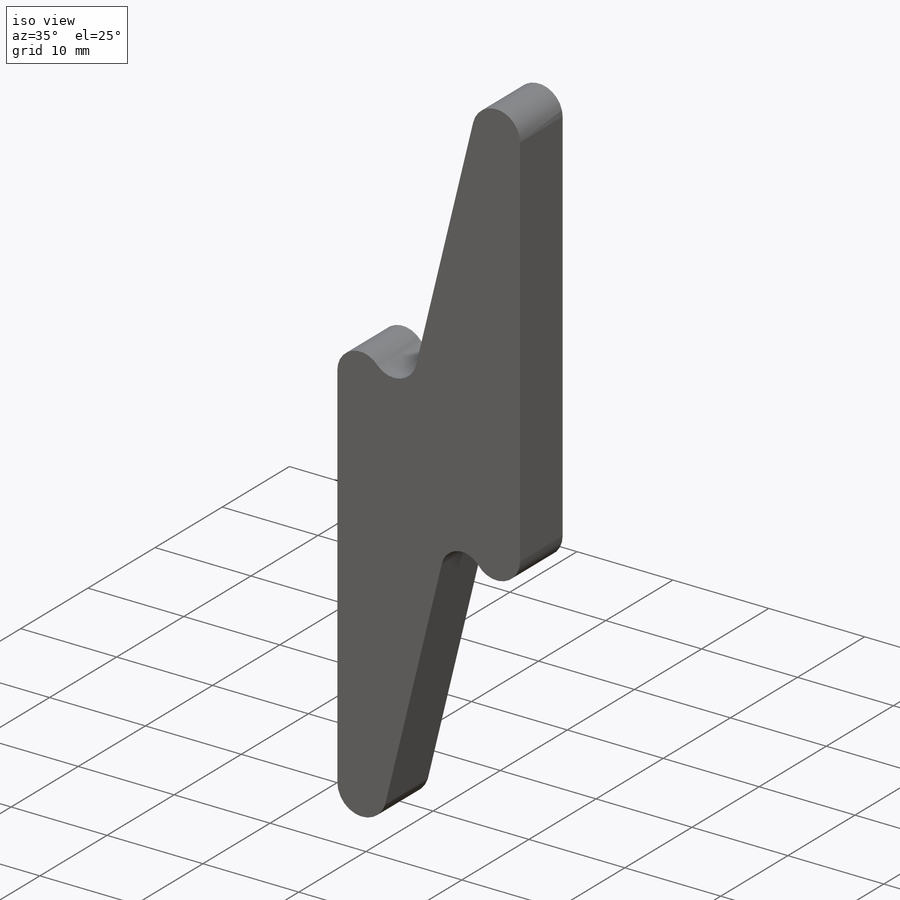
[diagram: iso view]
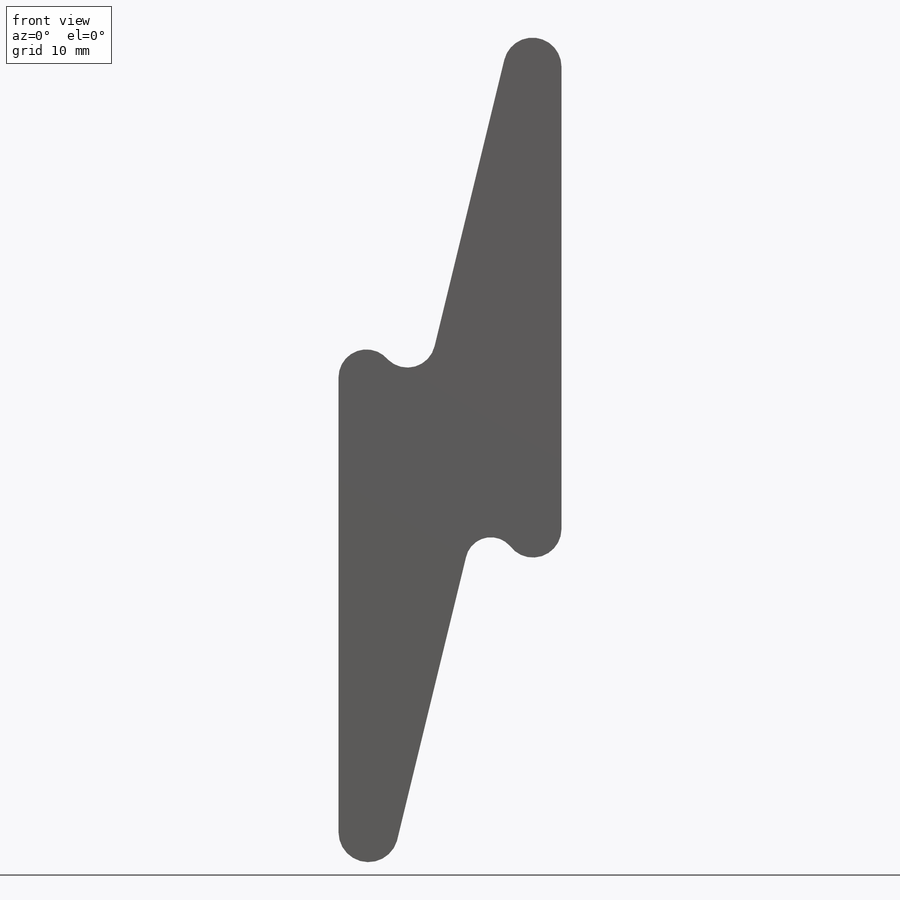
[diagram: front view]
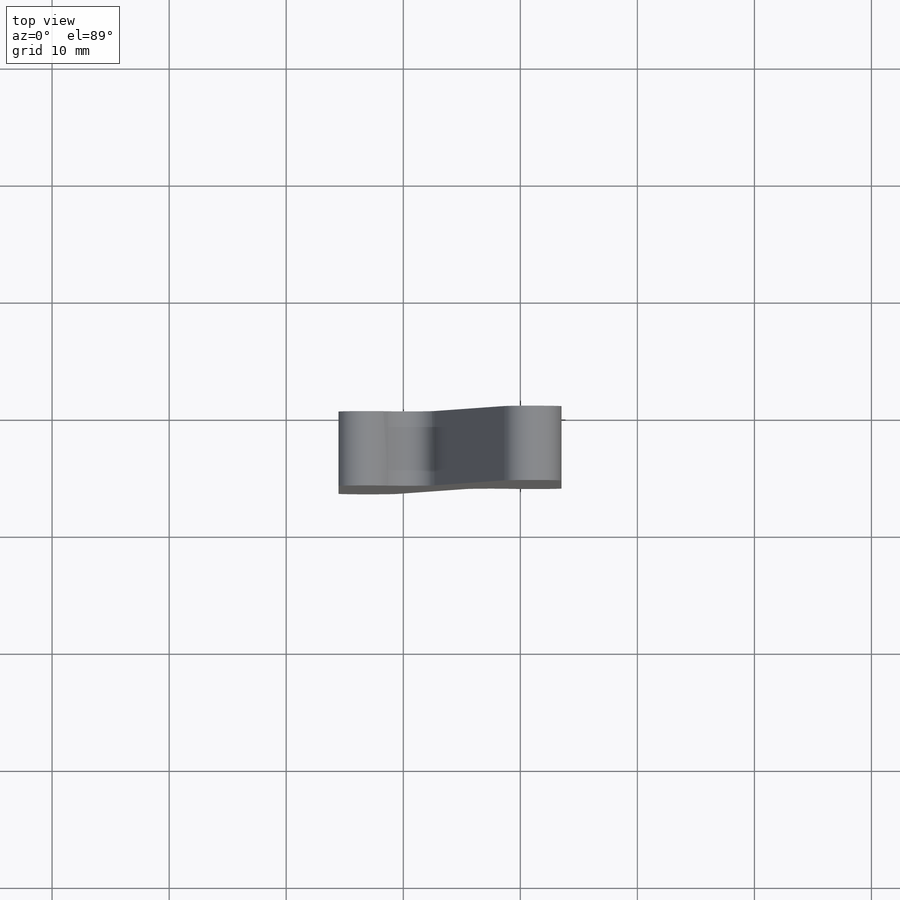
[diagram: top view]
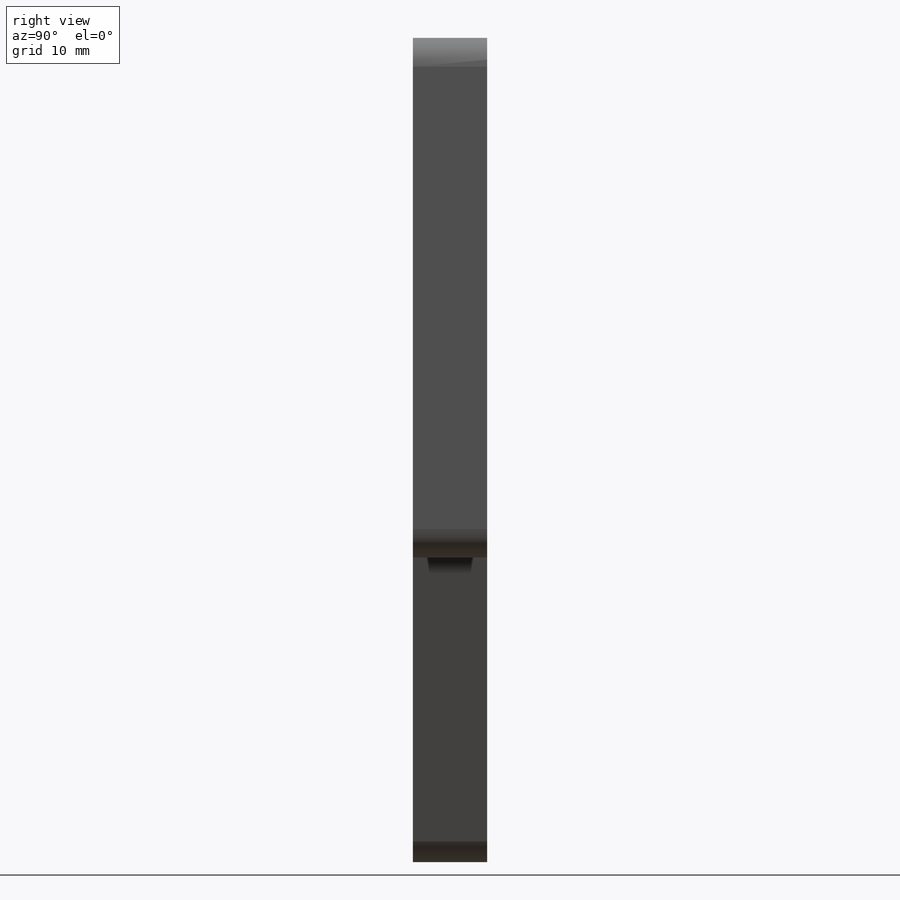
[diagram: right view]
SOLIDWORKS PART (.sldprt)
format: sldprt  version: not decoded by parser v0  size: 215,040 bytes
history: native  units: mm
features: sketch x2, extrude x2, chamfer x2, material x1, shell x1 (+13 scaffold rows collapsed)
feature tree (21):
  scaffold x13  (default folders/planes/origin — collapsed)
  material  "Material <not specified>"
  sketch  "Model"  dims[D1=19.05mm D2=65.405mm D3=12.954mm D4=14.224mm]
  extrude  "Boss-Extrude1"  Depth=6.35mm
  shell  "Shell1"  Thickness=1.524mm
  sketch  "Sketch2"  dims[D1=2.286mm D2=1.016mm]
  extrude  "Boss-Extrude2"  Depth=0.508mm
  chamfer  "Chamfer1"  Distance=0.508mm Angle=45deg
  chamfer  "Chamfer2"  Distance=0.508mm Angle=45deg
decode coverage: 7 of 7 modeling features carry decoded parameters
note: suppression state not decoded; provenance and decode notes live in map.json
